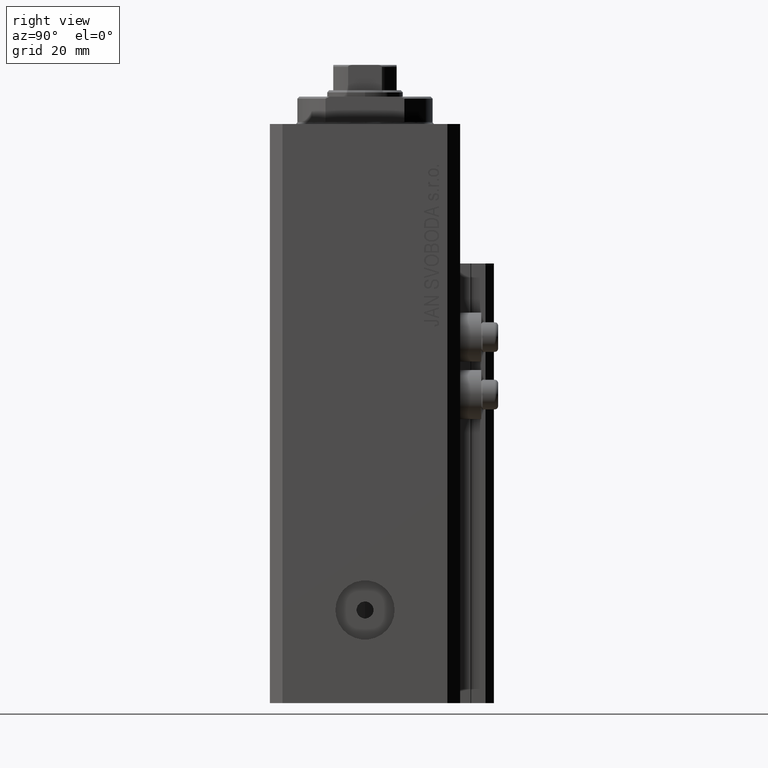
[diagram: clean part render]
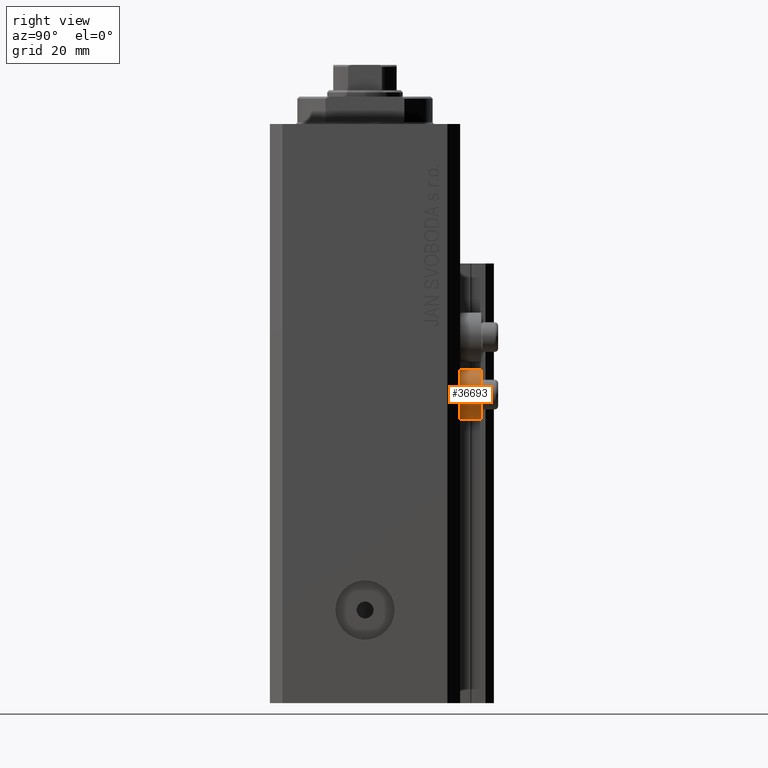
[diagram: same view with one face highlighted and labeled with its STEP entity id]
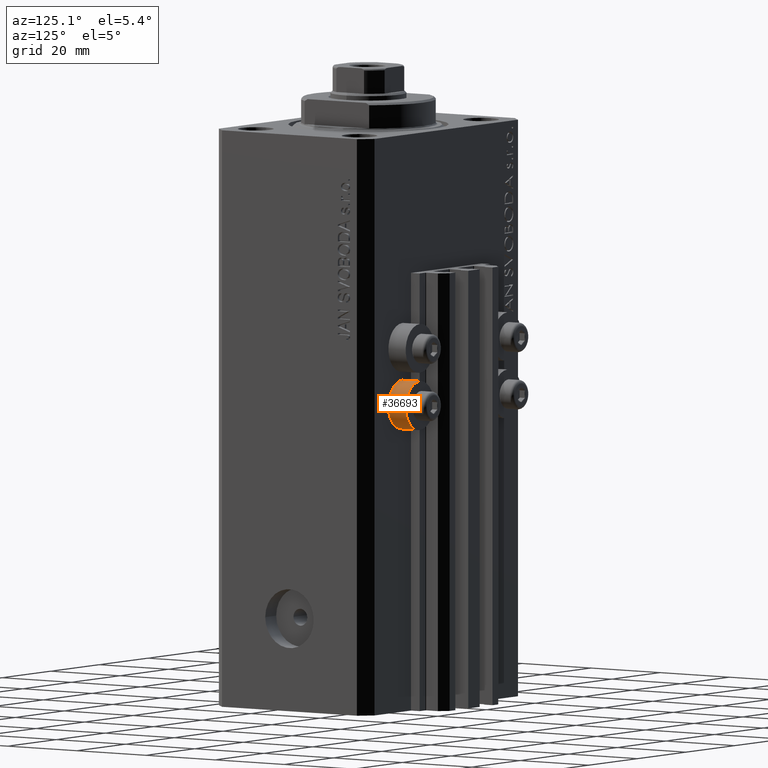
[diagram: same view with one face highlighted and labeled with its STEP entity id]
A machine part, right view. The second image highlights one B-rep face of the part: STEP entity #36693.
A second angle (auxiliary view) of the same face is appended — the face is thin or edge-on in the first view.
In plain terms, the highlighted cylindrical surface (edge-blend (fillet) strip) has radius 5.8 mm, axis along (0, 1, 0).
Its self-contained STEP definition (entity closure, byte-faithful):
#561 = AXIS2_PLACEMENT_3D ( 'NONE', #18122, #29629, #26261 ) ;
#1165 = CIRCLE ( 'NONE', #27933, 5.799999999999999822 ) ;
#1808 = DIRECTION ( 'NONE',  ( 0.000000000000000000, 1.000000000000000000, 0.000000000000000000 ) ) ;
#2993 = LINE ( 'NONE', #9221, #29064 ) ;
#5402 = ORIENTED_EDGE ( 'NONE', *, *, #6258, .T. ) ;
#5587 = DIRECTION ( 'NONE',  ( 0.000000000000000000, 1.000000000000000000, 0.000000000000000000 ) ) ;
#6081 = EDGE_CURVE ( 'NONE', #20450, #42492, #15467, .T. ) ;
#6258 = EDGE_CURVE ( 'NONE', #44751, #10595, #2993, .T. ) ;
#6405 = AXIS2_PLACEMENT_3D ( 'NONE', #13973, #5587, #31450 ) ;
#9221 = CARTESIAN_POINT ( 'NONE',  ( 18.00000000000000355, 27.49999999996051514, -69.79999999999999716 ) ) ;
#9312 = DIRECTION ( 'NONE',  ( 0.000000000000000000, 0.000000000000000000, -1.000000000000000000 ) ) ;
#10595 = VERTEX_POINT ( 'NONE', #19891 ) ;
#12921 = DIRECTION ( 'NONE',  ( 0.000000000000000000, 1.000000000000000000, 0.000000000000000000 ) ) ;
#13973 = CARTESIAN_POINT ( 'NONE',  ( 18.00000000000000355, 27.49999999996051514, -64.00000000000000000 ) ) ;
#14744 = ORIENTED_EDGE ( 'NONE', *, *, #6081, .F. ) ;
#15467 = LINE ( 'NONE', #40858, #30592 ) ;
#16976 = CARTESIAN_POINT ( 'NONE',  ( 18.00000000000000355, 22.49999999999951328, -64.00000000000000000 ) ) ;
#18122 = CARTESIAN_POINT ( 'NONE',  ( 18.00000000000000355, 27.49999999996051514, -64.00000000000000000 ) ) ;
#19891 = CARTESIAN_POINT ( 'NONE',  ( 18.00000000000000355, 27.49999999996051514, -69.79999999999999716 ) ) ;
#20450 = VERTEX_POINT ( 'NONE', #39972 ) ;
#20751 = CARTESIAN_POINT ( 'NONE',  ( 18.00000000000000355, 22.49999999999951328, -69.79999999999999716 ) ) ;
#24038 = EDGE_CURVE ( 'NONE', #42492, #10595, #31621, .T. ) ;
#26261 = DIRECTION ( 'NONE',  ( 0.000000000000000000, 0.000000000000000000, -1.000000000000000000 ) ) ;
#27933 = AXIS2_PLACEMENT_3D ( 'NONE', #16976, #12921, #9312 ) ;
#28382 = DIRECTION ( 'NONE',  ( 0.000000000000000000, 1.000000000000000000, 0.000000000000000000 ) ) ;
#29064 = VECTOR ( 'NONE', #28382, 1000.000000000000000 ) ;
#29629 = DIRECTION ( 'NONE',  ( 0.000000000000000000, 1.000000000000000000, 0.000000000000000000 ) ) ;
#30592 = VECTOR ( 'NONE', #1808, 1000.000000000000000 ) ;
#31450 = DIRECTION ( 'NONE',  ( 0.000000000000000000, 0.000000000000000000, -1.000000000000000000 ) ) ;
#31621 = CIRCLE ( 'NONE', #6405, 5.799999999999999822 ) ;
#35118 = ORIENTED_EDGE ( 'NONE', *, *, #24038, .F. ) ;
#36324 = CYLINDRICAL_SURFACE ( 'NONE', #561, 5.799999999999999822 ) ;
#36693 = ADVANCED_FACE ( 'NONE', ( #39925 ), #36324, .T. ) ;
#38997 = CARTESIAN_POINT ( 'NONE',  ( 18.00000000000000355, 27.49999999996051514, -58.20000000000000284 ) ) ;
#39925 = FACE_OUTER_BOUND ( 'NONE', #47195, .T. ) ;
#39972 = CARTESIAN_POINT ( 'NONE',  ( 18.00000000000000355, 22.49999999999951328, -58.20000000000000284 ) ) ;
#40611 = ORIENTED_EDGE ( 'NONE', *, *, #43211, .T. ) ;
#40858 = CARTESIAN_POINT ( 'NONE',  ( 18.00000000000000355, 27.49999999996051514, -58.20000000000000284 ) ) ;
#42492 = VERTEX_POINT ( 'NONE', #38997 ) ;
#43211 = EDGE_CURVE ( 'NONE', #20450, #44751, #1165, .T. ) ;
#44751 = VERTEX_POINT ( 'NONE', #20751 ) ;
#47195 = EDGE_LOOP ( 'NONE', ( #14744, #40611, #5402, #35118 ) ) ;